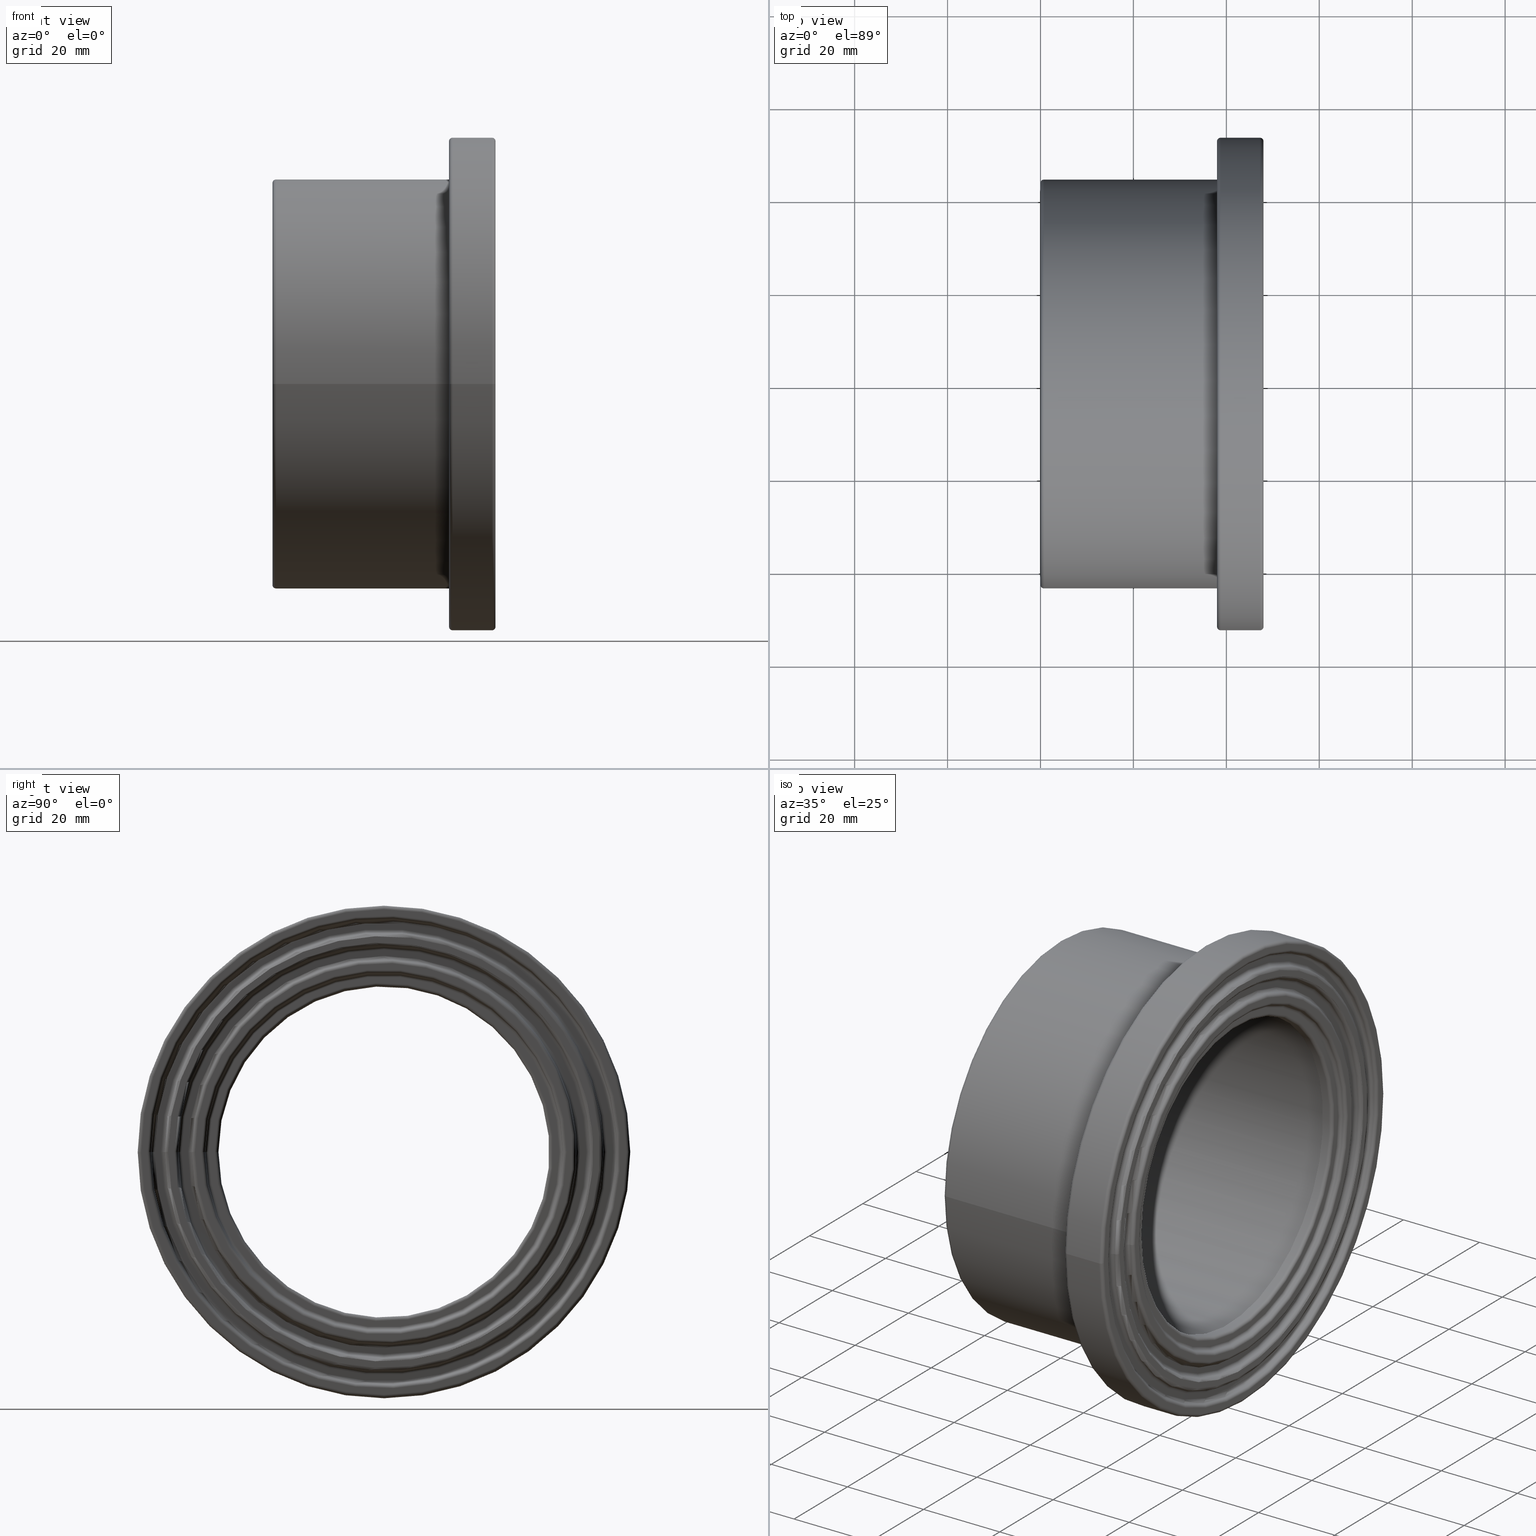
[diagram: canonical four-view strip — front | top / right | iso, engineering-drawing reading convention]
A machine part, canonical four-view strip (front | top / right | iso — engineering-drawing reading convention). The complete STEP part file that produces these views, byte-faithful:
ISO-10303-21;
HEADER;
/* Generated by software containing ST-Developer
 * from STEP Tools, Inc. (www.steptools.com) 
 */

FILE_DESCRIPTION(
/* description */ ('PLASSON FLANGE(FLAT GASKET)C 75'),
/* implementation_level */ '2;1');

FILE_NAME(
/* name */ 
'C:\\Dropbox\\KIMPROJECTS-Inventor\\99-16-3568-Processing\\PVC Catalog
 2017\\055200\\055200075.ipt.stp',
/* time_stamp */ '2017-12-07T16:05:05+02:00',
/* author */ ('KIM'),
/* organization */ (''),
/* preprocessor_version */ 'ST-DEVELOPER v15.6',
/* originating_system */ 'Autodesk Inventor 2015',
/* authorisation */ '');

FILE_SCHEMA (('AUTOMOTIVE_DESIGN { 1 0 10303 214 3 1 1 }'));
ENDSEC;

DATA;
#10=MECHANICAL_DESIGN_GEOMETRIC_PRESENTATION_REPRESENTATION('',(#13),#583);
#11=SHAPE_REPRESENTATION_RELATIONSHIP('SRR','None',#592,#12);
#12=ADVANCED_BREP_SHAPE_REPRESENTATION($,(#14),#582);
#13=STYLED_ITEM('',(#601),#14);
#14=MANIFOLD_SOLID_BREP('Solid1',#323);
#15=CYLINDRICAL_SURFACE('',#330,35.625);
#16=CYLINDRICAL_SURFACE('',#358,37.5);
#17=CYLINDRICAL_SURFACE('',#371,53.);
#18=CYLINDRICAL_SURFACE('',#379,44.);
#19=PLANE('',#328);
#20=PLANE('',#336);
#21=PLANE('',#341);
#22=PLANE('',#345);
#23=PLANE('',#351);
#24=PLANE('',#356);
#25=PLANE('',#364);
#26=PLANE('',#375);
#27=PLANE('',#380);
#28=FACE_BOUND('',#85,.T.);
#29=FACE_BOUND('',#87,.T.);
#30=FACE_BOUND('',#89,.T.);
#31=FACE_BOUND('',#91,.T.);
#32=FACE_BOUND('',#93,.T.);
#33=FACE_BOUND('',#95,.T.);
#34=FACE_BOUND('',#97,.T.);
#35=FACE_BOUND('',#99,.T.);
#36=FACE_BOUND('',#101,.T.);
#37=FACE_BOUND('',#103,.T.);
#38=FACE_BOUND('',#105,.T.);
#39=FACE_BOUND('',#107,.T.);
#40=FACE_BOUND('',#109,.T.);
#41=FACE_BOUND('',#111,.T.);
#42=FACE_BOUND('',#113,.T.);
#43=FACE_BOUND('',#115,.T.);
#44=FACE_BOUND('',#117,.T.);
#45=FACE_BOUND('',#119,.T.);
#46=FACE_BOUND('',#121,.T.);
#47=FACE_BOUND('',#123,.T.);
#48=FACE_BOUND('',#125,.T.);
#49=FACE_BOUND('',#127,.T.);
#50=FACE_BOUND('',#129,.T.);
#51=FACE_BOUND('',#131,.T.);
#52=FACE_BOUND('',#133,.T.);
#53=FACE_BOUND('',#135,.T.);
#54=FACE_BOUND('',#137,.T.);
#55=FACE_BOUND('',#139,.T.);
#56=FACE_OUTER_BOUND('',#84,.T.);
#57=FACE_OUTER_BOUND('',#86,.T.);
#58=FACE_OUTER_BOUND('',#88,.T.);
#59=FACE_OUTER_BOUND('',#90,.T.);
#60=FACE_OUTER_BOUND('',#92,.T.);
#61=FACE_OUTER_BOUND('',#94,.T.);
#62=FACE_OUTER_BOUND('',#96,.T.);
#63=FACE_OUTER_BOUND('',#98,.T.);
#64=FACE_OUTER_BOUND('',#100,.T.);
#65=FACE_OUTER_BOUND('',#102,.T.);
#66=FACE_OUTER_BOUND('',#104,.T.);
#67=FACE_OUTER_BOUND('',#106,.T.);
#68=FACE_OUTER_BOUND('',#108,.T.);
#69=FACE_OUTER_BOUND('',#110,.T.);
#70=FACE_OUTER_BOUND('',#112,.T.);
#71=FACE_OUTER_BOUND('',#114,.T.);
#72=FACE_OUTER_BOUND('',#116,.T.);
#73=FACE_OUTER_BOUND('',#118,.T.);
#74=FACE_OUTER_BOUND('',#120,.T.);
#75=FACE_OUTER_BOUND('',#122,.T.);
#76=FACE_OUTER_BOUND('',#124,.T.);
#77=FACE_OUTER_BOUND('',#126,.T.);
#78=FACE_OUTER_BOUND('',#128,.T.);
#79=FACE_OUTER_BOUND('',#130,.T.);
#80=FACE_OUTER_BOUND('',#132,.T.);
#81=FACE_OUTER_BOUND('',#134,.T.);
#82=FACE_OUTER_BOUND('',#136,.T.);
#83=FACE_OUTER_BOUND('',#138,.T.);
#84=EDGE_LOOP('',(#224));
#85=EDGE_LOOP('',(#225));
#86=EDGE_LOOP('',(#226));
#87=EDGE_LOOP('',(#227));
#88=EDGE_LOOP('',(#228));
#89=EDGE_LOOP('',(#229));
#90=EDGE_LOOP('',(#230));
#91=EDGE_LOOP('',(#231));
#92=EDGE_LOOP('',(#232));
#93=EDGE_LOOP('',(#233));
#94=EDGE_LOOP('',(#234));
#95=EDGE_LOOP('',(#235));
#96=EDGE_LOOP('',(#236));
#97=EDGE_LOOP('',(#237));
#98=EDGE_LOOP('',(#238));
#99=EDGE_LOOP('',(#239));
#100=EDGE_LOOP('',(#240));
#101=EDGE_LOOP('',(#241));
#102=EDGE_LOOP('',(#242));
#103=EDGE_LOOP('',(#243));
#104=EDGE_LOOP('',(#244));
#105=EDGE_LOOP('',(#245));
#106=EDGE_LOOP('',(#246));
#107=EDGE_LOOP('',(#247));
#108=EDGE_LOOP('',(#248));
#109=EDGE_LOOP('',(#249));
#110=EDGE_LOOP('',(#250));
#111=EDGE_LOOP('',(#251));
#112=EDGE_LOOP('',(#252));
#113=EDGE_LOOP('',(#253));
#114=EDGE_LOOP('',(#254));
#115=EDGE_LOOP('',(#255));
#116=EDGE_LOOP('',(#256));
#117=EDGE_LOOP('',(#257));
#118=EDGE_LOOP('',(#258));
#119=EDGE_LOOP('',(#259));
#120=EDGE_LOOP('',(#260));
#121=EDGE_LOOP('',(#261));
#122=EDGE_LOOP('',(#262));
#123=EDGE_LOOP('',(#263));
#124=EDGE_LOOP('',(#264));
#125=EDGE_LOOP('',(#265));
#126=EDGE_LOOP('',(#266));
#127=EDGE_LOOP('',(#267));
#128=EDGE_LOOP('',(#268));
#129=EDGE_LOOP('',(#269));
#130=EDGE_LOOP('',(#270));
#131=EDGE_LOOP('',(#271));
#132=EDGE_LOOP('',(#272));
#133=EDGE_LOOP('',(#273));
#134=EDGE_LOOP('',(#274));
#135=EDGE_LOOP('',(#275));
#136=EDGE_LOOP('',(#276));
#137=EDGE_LOOP('',(#277));
#138=EDGE_LOOP('',(#278));
#139=EDGE_LOOP('',(#279));
#140=CIRCLE('',#326,35.625);
#141=CIRCLE('',#327,36.375);
#142=CIRCLE('',#329,37.7708333333333);
#143=CIRCLE('',#331,35.625);
#144=CIRCLE('',#333,38.5208333333333);
#145=CIRCLE('',#335,39.2708333333333);
#146=CIRCLE('',#337,40.6666666666667);
#147=CIRCLE('',#339,50.1041666666667);
#148=CIRCLE('',#340,50.8541666666667);
#149=CIRCLE('',#342,52.25);
#150=CIRCLE('',#344,49.3541666666667);
#151=CIRCLE('',#346,47.9583333333333);
#152=CIRCLE('',#348,47.2083333333333);
#153=CIRCLE('',#350,46.4583333333333);
#154=CIRCLE('',#352,45.0625);
#155=CIRCLE('',#354,38.25);
#156=CIRCLE('',#355,37.5);
#157=CIRCLE('',#357,43.25);
#158=CIRCLE('',#359,37.5);
#159=CIRCLE('',#361,41.4166666666667);
#160=CIRCLE('',#363,42.1666666666667);
#161=CIRCLE('',#365,43.5625);
#162=CIRCLE('',#367,44.3125);
#163=CIRCLE('',#370,53.);
#164=CIRCLE('',#372,53.);
#165=CIRCLE('',#374,52.25);
#166=CIRCLE('',#376,44.);
#167=CIRCLE('',#378,44.);
#168=VERTEX_POINT('',#497);
#169=VERTEX_POINT('',#499);
#170=VERTEX_POINT('',#502);
#171=VERTEX_POINT('',#505);
#172=VERTEX_POINT('',#508);
#173=VERTEX_POINT('',#511);
#174=VERTEX_POINT('',#514);
#175=VERTEX_POINT('',#517);
#176=VERTEX_POINT('',#519);
#177=VERTEX_POINT('',#522);
#178=VERTEX_POINT('',#525);
#179=VERTEX_POINT('',#528);
#180=VERTEX_POINT('',#531);
#181=VERTEX_POINT('',#534);
#182=VERTEX_POINT('',#537);
#183=VERTEX_POINT('',#540);
#184=VERTEX_POINT('',#542);
#185=VERTEX_POINT('',#545);
#186=VERTEX_POINT('',#548);
#187=VERTEX_POINT('',#551);
#188=VERTEX_POINT('',#554);
#189=VERTEX_POINT('',#557);
#190=VERTEX_POINT('',#560);
#191=VERTEX_POINT('',#564);
#192=VERTEX_POINT('',#567);
#193=VERTEX_POINT('',#570);
#194=VERTEX_POINT('',#573);
#195=VERTEX_POINT('',#576);
#196=EDGE_CURVE('',#168,#168,#140,.T.);
#197=EDGE_CURVE('',#169,#169,#141,.T.);
#198=EDGE_CURVE('',#170,#170,#142,.T.);
#199=EDGE_CURVE('',#171,#171,#143,.T.);
#200=EDGE_CURVE('',#172,#172,#144,.T.);
#201=EDGE_CURVE('',#173,#173,#145,.T.);
#202=EDGE_CURVE('',#174,#174,#146,.T.);
#203=EDGE_CURVE('',#175,#175,#147,.T.);
#204=EDGE_CURVE('',#176,#176,#148,.T.);
#205=EDGE_CURVE('',#177,#177,#149,.T.);
#206=EDGE_CURVE('',#178,#178,#150,.T.);
#207=EDGE_CURVE('',#179,#179,#151,.T.);
#208=EDGE_CURVE('',#180,#180,#152,.T.);
#209=EDGE_CURVE('',#181,#181,#153,.T.);
#210=EDGE_CURVE('',#182,#182,#154,.T.);
#211=EDGE_CURVE('',#183,#183,#155,.T.);
#212=EDGE_CURVE('',#184,#184,#156,.T.);
#213=EDGE_CURVE('',#185,#185,#157,.T.);
#214=EDGE_CURVE('',#186,#186,#158,.T.);
#215=EDGE_CURVE('',#187,#187,#159,.T.);
#216=EDGE_CURVE('',#188,#188,#160,.T.);
#217=EDGE_CURVE('',#189,#189,#161,.T.);
#218=EDGE_CURVE('',#190,#190,#162,.T.);
#219=EDGE_CURVE('',#191,#191,#163,.T.);
#220=EDGE_CURVE('',#192,#192,#164,.T.);
#221=EDGE_CURVE('',#193,#193,#165,.T.);
#222=EDGE_CURVE('',#194,#194,#166,.T.);
#223=EDGE_CURVE('',#195,#195,#167,.T.);
#224=ORIENTED_EDGE('',*,*,#196,.T.);
#225=ORIENTED_EDGE('',*,*,#197,.T.);
#226=ORIENTED_EDGE('',*,*,#198,.F.);
#227=ORIENTED_EDGE('',*,*,#197,.F.);
#228=ORIENTED_EDGE('',*,*,#199,.T.);
#229=ORIENTED_EDGE('',*,*,#196,.F.);
#230=ORIENTED_EDGE('',*,*,#198,.T.);
#231=ORIENTED_EDGE('',*,*,#200,.F.);
#232=ORIENTED_EDGE('',*,*,#200,.T.);
#233=ORIENTED_EDGE('',*,*,#201,.T.);
#234=ORIENTED_EDGE('',*,*,#202,.F.);
#235=ORIENTED_EDGE('',*,*,#201,.F.);
#236=ORIENTED_EDGE('',*,*,#203,.F.);
#237=ORIENTED_EDGE('',*,*,#204,.T.);
#238=ORIENTED_EDGE('',*,*,#205,.F.);
#239=ORIENTED_EDGE('',*,*,#204,.F.);
#240=ORIENTED_EDGE('',*,*,#206,.T.);
#241=ORIENTED_EDGE('',*,*,#203,.T.);
#242=ORIENTED_EDGE('',*,*,#206,.F.);
#243=ORIENTED_EDGE('',*,*,#207,.F.);
#244=ORIENTED_EDGE('',*,*,#208,.F.);
#245=ORIENTED_EDGE('',*,*,#207,.T.);
#246=ORIENTED_EDGE('',*,*,#209,.T.);
#247=ORIENTED_EDGE('',*,*,#208,.T.);
#248=ORIENTED_EDGE('',*,*,#209,.F.);
#249=ORIENTED_EDGE('',*,*,#210,.F.);
#250=ORIENTED_EDGE('',*,*,#211,.T.);
#251=ORIENTED_EDGE('',*,*,#212,.T.);
#252=ORIENTED_EDGE('',*,*,#213,.F.);
#253=ORIENTED_EDGE('',*,*,#211,.F.);
#254=ORIENTED_EDGE('',*,*,#214,.F.);
#255=ORIENTED_EDGE('',*,*,#212,.F.);
#256=ORIENTED_EDGE('',*,*,#202,.T.);
#257=ORIENTED_EDGE('',*,*,#215,.F.);
#258=ORIENTED_EDGE('',*,*,#215,.T.);
#259=ORIENTED_EDGE('',*,*,#216,.T.);
#260=ORIENTED_EDGE('',*,*,#217,.F.);
#261=ORIENTED_EDGE('',*,*,#216,.F.);
#262=ORIENTED_EDGE('',*,*,#217,.T.);
#263=ORIENTED_EDGE('',*,*,#218,.F.);
#264=ORIENTED_EDGE('',*,*,#218,.T.);
#265=ORIENTED_EDGE('',*,*,#210,.T.);
#266=ORIENTED_EDGE('',*,*,#205,.T.);
#267=ORIENTED_EDGE('',*,*,#219,.T.);
#268=ORIENTED_EDGE('',*,*,#220,.F.);
#269=ORIENTED_EDGE('',*,*,#219,.F.);
#270=ORIENTED_EDGE('',*,*,#220,.T.);
#271=ORIENTED_EDGE('',*,*,#221,.T.);
#272=ORIENTED_EDGE('',*,*,#221,.F.);
#273=ORIENTED_EDGE('',*,*,#222,.F.);
#274=ORIENTED_EDGE('',*,*,#223,.T.);
#275=ORIENTED_EDGE('',*,*,#213,.T.);
#276=ORIENTED_EDGE('',*,*,#222,.T.);
#277=ORIENTED_EDGE('',*,*,#223,.F.);
#278=ORIENTED_EDGE('',*,*,#214,.T.);
#279=ORIENTED_EDGE('',*,*,#199,.F.);
#280=TOROIDAL_SURFACE('',#325,36.375,0.75);
#281=TOROIDAL_SURFACE('',#332,37.7708333333333,0.75);
#282=TOROIDAL_SURFACE('',#334,39.2708333333333,0.75);
#283=TOROIDAL_SURFACE('',#338,50.8541666666667,0.75);
#284=TOROIDAL_SURFACE('',#343,49.3541666666667,0.75);
#285=TOROIDAL_SURFACE('',#347,47.9583333333333,0.75);
#286=TOROIDAL_SURFACE('',#349,46.4583333333333,0.75);
#287=TOROIDAL_SURFACE('',#353,38.25,0.75);
#288=TOROIDAL_SURFACE('',#360,40.6666666666667,0.75);
#289=TOROIDAL_SURFACE('',#362,42.1666666666667,0.75);
#290=TOROIDAL_SURFACE('',#366,43.5625,0.75);
#291=TOROIDAL_SURFACE('',#368,45.0625,0.75);
#292=TOROIDAL_SURFACE('',#369,52.25,0.75);
#293=TOROIDAL_SURFACE('',#373,52.25,0.75);
#294=TOROIDAL_SURFACE('',#377,43.25,0.75);
#295=ADVANCED_FACE('',(#56,#28),#280,.T.);
#296=ADVANCED_FACE('',(#57,#29),#19,.T.);
#297=ADVANCED_FACE('',(#58,#30),#15,.F.);
#298=ADVANCED_FACE('',(#59,#31),#281,.F.);
#299=ADVANCED_FACE('',(#60,#32),#282,.T.);
#300=ADVANCED_FACE('',(#61,#33),#20,.T.);
#301=ADVANCED_FACE('',(#62,#34),#283,.T.);
#302=ADVANCED_FACE('',(#63,#35),#21,.T.);
#303=ADVANCED_FACE('',(#64,#36),#284,.F.);
#304=ADVANCED_FACE('',(#65,#37),#22,.T.);
#305=ADVANCED_FACE('',(#66,#38),#285,.F.);
#306=ADVANCED_FACE('',(#67,#39),#286,.T.);
#307=ADVANCED_FACE('',(#68,#40),#23,.T.);
#308=ADVANCED_FACE('',(#69,#41),#287,.T.);
#309=ADVANCED_FACE('',(#70,#42),#24,.T.);
#310=ADVANCED_FACE('',(#71,#43),#16,.F.);
#311=ADVANCED_FACE('',(#72,#44),#288,.T.);
#312=ADVANCED_FACE('',(#73,#45),#289,.F.);
#313=ADVANCED_FACE('',(#74,#46),#25,.T.);
#314=ADVANCED_FACE('',(#75,#47),#290,.F.);
#315=ADVANCED_FACE('',(#76,#48),#291,.T.);
#316=ADVANCED_FACE('',(#77,#49),#292,.T.);
#317=ADVANCED_FACE('',(#78,#50),#17,.T.);
#318=ADVANCED_FACE('',(#79,#51),#293,.T.);
#319=ADVANCED_FACE('',(#80,#52),#26,.T.);
#320=ADVANCED_FACE('',(#81,#53),#294,.T.);
#321=ADVANCED_FACE('',(#82,#54),#18,.T.);
#322=ADVANCED_FACE('',(#83,#55),#27,.T.);
#323=CLOSED_SHELL('',(#295,#296,#297,#298,#299,#300,#301,#302,#303,#304,
#305,#306,#307,#308,#309,#310,#311,#312,#313,#314,#315,#316,#317,#318,#319,
#320,#321,#322));
#324=AXIS2_PLACEMENT_3D('placement',#495,#381,#382);
#325=AXIS2_PLACEMENT_3D('',#496,#383,#384);
#326=AXIS2_PLACEMENT_3D('',#498,#385,#386);
#327=AXIS2_PLACEMENT_3D('',#500,#387,#388);
#328=AXIS2_PLACEMENT_3D('',#501,#389,#390);
#329=AXIS2_PLACEMENT_3D('',#503,#391,#392);
#330=AXIS2_PLACEMENT_3D('',#504,#393,#394);
#331=AXIS2_PLACEMENT_3D('',#506,#395,#396);
#332=AXIS2_PLACEMENT_3D('',#507,#397,#398);
#333=AXIS2_PLACEMENT_3D('',#509,#399,#400);
#334=AXIS2_PLACEMENT_3D('',#510,#401,#402);
#335=AXIS2_PLACEMENT_3D('',#512,#403,#404);
#336=AXIS2_PLACEMENT_3D('',#513,#405,#406);
#337=AXIS2_PLACEMENT_3D('',#515,#407,#408);
#338=AXIS2_PLACEMENT_3D('',#516,#409,#410);
#339=AXIS2_PLACEMENT_3D('',#518,#411,#412);
#340=AXIS2_PLACEMENT_3D('',#520,#413,#414);
#341=AXIS2_PLACEMENT_3D('',#521,#415,#416);
#342=AXIS2_PLACEMENT_3D('',#523,#417,#418);
#343=AXIS2_PLACEMENT_3D('',#524,#419,#420);
#344=AXIS2_PLACEMENT_3D('',#526,#421,#422);
#345=AXIS2_PLACEMENT_3D('',#527,#423,#424);
#346=AXIS2_PLACEMENT_3D('',#529,#425,#426);
#347=AXIS2_PLACEMENT_3D('',#530,#427,#428);
#348=AXIS2_PLACEMENT_3D('',#532,#429,#430);
#349=AXIS2_PLACEMENT_3D('',#533,#431,#432);
#350=AXIS2_PLACEMENT_3D('',#535,#433,#434);
#351=AXIS2_PLACEMENT_3D('',#536,#435,#436);
#352=AXIS2_PLACEMENT_3D('',#538,#437,#438);
#353=AXIS2_PLACEMENT_3D('',#539,#439,#440);
#354=AXIS2_PLACEMENT_3D('',#541,#441,#442);
#355=AXIS2_PLACEMENT_3D('',#543,#443,#444);
#356=AXIS2_PLACEMENT_3D('',#544,#445,#446);
#357=AXIS2_PLACEMENT_3D('',#546,#447,#448);
#358=AXIS2_PLACEMENT_3D('',#547,#449,#450);
#359=AXIS2_PLACEMENT_3D('',#549,#451,#452);
#360=AXIS2_PLACEMENT_3D('',#550,#453,#454);
#361=AXIS2_PLACEMENT_3D('',#552,#455,#456);
#362=AXIS2_PLACEMENT_3D('',#553,#457,#458);
#363=AXIS2_PLACEMENT_3D('',#555,#459,#460);
#364=AXIS2_PLACEMENT_3D('',#556,#461,#462);
#365=AXIS2_PLACEMENT_3D('',#558,#463,#464);
#366=AXIS2_PLACEMENT_3D('',#559,#465,#466);
#367=AXIS2_PLACEMENT_3D('',#561,#467,#468);
#368=AXIS2_PLACEMENT_3D('',#562,#469,#470);
#369=AXIS2_PLACEMENT_3D('',#563,#471,#472);
#370=AXIS2_PLACEMENT_3D('',#565,#473,#474);
#371=AXIS2_PLACEMENT_3D('',#566,#475,#476);
#372=AXIS2_PLACEMENT_3D('',#568,#477,#478);
#373=AXIS2_PLACEMENT_3D('',#569,#479,#480);
#374=AXIS2_PLACEMENT_3D('',#571,#481,#482);
#375=AXIS2_PLACEMENT_3D('',#572,#483,#484);
#376=AXIS2_PLACEMENT_3D('',#574,#485,#486);
#377=AXIS2_PLACEMENT_3D('',#575,#487,#488);
#378=AXIS2_PLACEMENT_3D('',#577,#489,#490);
#379=AXIS2_PLACEMENT_3D('',#578,#491,#492);
#380=AXIS2_PLACEMENT_3D('',#579,#493,#494);
#381=DIRECTION('axis',(0.,0.,1.));
#382=DIRECTION('refdir',(1.,0.,0.));
#383=DIRECTION('center_axis',(-1.,0.,0.));
#384=DIRECTION('ref_axis',(0.,0.,1.));
#385=DIRECTION('center_axis',(-1.,0.,0.));
#386=DIRECTION('ref_axis',(0.,1.,6.12323399573677E-17));
#387=DIRECTION('center_axis',(1.,0.,0.));
#388=DIRECTION('ref_axis',(0.,1.,6.12323399573676E-17));
#389=DIRECTION('center_axis',(1.,0.,0.));
#390=DIRECTION('ref_axis',(0.,0.,-1.));
#391=DIRECTION('center_axis',(-1.,0.,0.));
#392=DIRECTION('ref_axis',(0.,1.,6.12323399573677E-17));
#393=DIRECTION('center_axis',(-1.,0.,0.));
#394=DIRECTION('ref_axis',(0.,-1.,0.));
#395=DIRECTION('center_axis',(-1.,0.,0.));
#396=DIRECTION('ref_axis',(0.,0.,1.));
#397=DIRECTION('center_axis',(-1.,0.,0.));
#398=DIRECTION('ref_axis',(0.,0.,1.));
#399=DIRECTION('center_axis',(-1.,0.,0.));
#400=DIRECTION('ref_axis',(0.,1.,6.12323399573677E-17));
#401=DIRECTION('center_axis',(-1.,0.,0.));
#402=DIRECTION('ref_axis',(0.,0.,1.));
#403=DIRECTION('center_axis',(1.,0.,0.));
#404=DIRECTION('ref_axis',(0.,1.,6.12323399573677E-17));
#405=DIRECTION('center_axis',(1.,0.,0.));
#406=DIRECTION('ref_axis',(0.,0.,-1.));
#407=DIRECTION('center_axis',(-1.,0.,0.));
#408=DIRECTION('ref_axis',(0.,1.,6.12323399573677E-17));
#409=DIRECTION('center_axis',(-1.,0.,0.));
#410=DIRECTION('ref_axis',(0.,0.,1.));
#411=DIRECTION('center_axis',(1.,0.,0.));
#412=DIRECTION('ref_axis',(0.,1.,6.12323399573677E-17));
#413=DIRECTION('center_axis',(1.,0.,0.));
#414=DIRECTION('ref_axis',(0.,1.,6.12323399573677E-17));
#415=DIRECTION('center_axis',(1.,0.,0.));
#416=DIRECTION('ref_axis',(0.,0.,-1.));
#417=DIRECTION('center_axis',(-1.,0.,0.));
#418=DIRECTION('ref_axis',(0.,1.,6.12323399573677E-17));
#419=DIRECTION('center_axis',(-1.,0.,0.));
#420=DIRECTION('ref_axis',(0.,0.,1.));
#421=DIRECTION('center_axis',(-1.,0.,0.));
#422=DIRECTION('ref_axis',(0.,1.,6.12323399573677E-17));
#423=DIRECTION('center_axis',(1.,0.,0.));
#424=DIRECTION('ref_axis',(0.,0.,-1.));
#425=DIRECTION('center_axis',(1.,0.,0.));
#426=DIRECTION('ref_axis',(0.,1.,6.12323399573677E-17));
#427=DIRECTION('center_axis',(-1.,0.,0.));
#428=DIRECTION('ref_axis',(0.,0.,1.));
#429=DIRECTION('center_axis',(1.,0.,0.));
#430=DIRECTION('ref_axis',(0.,1.,6.12323399573677E-17));
#431=DIRECTION('center_axis',(-1.,0.,0.));
#432=DIRECTION('ref_axis',(0.,0.,1.));
#433=DIRECTION('center_axis',(-1.,0.,0.));
#434=DIRECTION('ref_axis',(0.,1.,6.12323399573677E-17));
#435=DIRECTION('center_axis',(1.,0.,0.));
#436=DIRECTION('ref_axis',(0.,0.,-1.));
#437=DIRECTION('center_axis',(1.,0.,0.));
#438=DIRECTION('ref_axis',(0.,1.,6.12323399573676E-17));
#439=DIRECTION('center_axis',(-1.,0.,0.));
#440=DIRECTION('ref_axis',(0.,0.,1.));
#441=DIRECTION('center_axis',(-1.,0.,0.));
#442=DIRECTION('ref_axis',(0.,1.,6.12323399573677E-17));
#443=DIRECTION('center_axis',(1.,0.,0.));
#444=DIRECTION('ref_axis',(0.,1.,6.12323399573677E-17));
#445=DIRECTION('center_axis',(-1.,0.,0.));
#446=DIRECTION('ref_axis',(0.,0.,1.));
#447=DIRECTION('center_axis',(1.,0.,0.));
#448=DIRECTION('ref_axis',(0.,1.,6.12323399573677E-17));
#449=DIRECTION('center_axis',(-1.,0.,0.));
#450=DIRECTION('ref_axis',(0.,-1.,0.));
#451=DIRECTION('center_axis',(-1.,0.,0.));
#452=DIRECTION('ref_axis',(0.,0.,1.));
#453=DIRECTION('center_axis',(-1.,0.,0.));
#454=DIRECTION('ref_axis',(0.,0.,1.));
#455=DIRECTION('center_axis',(-1.,0.,0.));
#456=DIRECTION('ref_axis',(0.,1.,6.12323399573677E-17));
#457=DIRECTION('center_axis',(-1.,0.,0.));
#458=DIRECTION('ref_axis',(0.,0.,1.));
#459=DIRECTION('center_axis',(1.,0.,0.));
#460=DIRECTION('ref_axis',(0.,1.,6.12323399573676E-17));
#461=DIRECTION('center_axis',(1.,0.,0.));
#462=DIRECTION('ref_axis',(0.,0.,-1.));
#463=DIRECTION('center_axis',(-1.,0.,0.));
#464=DIRECTION('ref_axis',(0.,1.,6.12323399573677E-17));
#465=DIRECTION('center_axis',(-1.,0.,0.));
#466=DIRECTION('ref_axis',(0.,0.,1.));
#467=DIRECTION('center_axis',(-1.,0.,0.));
#468=DIRECTION('ref_axis',(0.,1.,6.12323399573677E-17));
#469=DIRECTION('center_axis',(-1.,0.,0.));
#470=DIRECTION('ref_axis',(0.,0.,1.));
#471=DIRECTION('center_axis',(-1.,0.,0.));
#472=DIRECTION('ref_axis',(0.,0.,1.));
#473=DIRECTION('center_axis',(1.,0.,0.));
#474=DIRECTION('ref_axis',(0.,1.,6.12323399573677E-17));
#475=DIRECTION('center_axis',(-1.,0.,0.));
#476=DIRECTION('ref_axis',(0.,-1.,0.));
#477=DIRECTION('center_axis',(-1.,0.,0.));
#478=DIRECTION('ref_axis',(0.,1.,6.12323399573677E-17));
#479=DIRECTION('center_axis',(-1.,0.,0.));
#480=DIRECTION('ref_axis',(0.,0.,1.));
#481=DIRECTION('center_axis',(1.,0.,0.));
#482=DIRECTION('ref_axis',(0.,1.,6.12323399573677E-17));
#483=DIRECTION('center_axis',(-1.,0.,0.));
#484=DIRECTION('ref_axis',(0.,0.,1.));
#485=DIRECTION('center_axis',(-1.,0.,0.));
#486=DIRECTION('ref_axis',(0.,0.,1.));
#487=DIRECTION('center_axis',(-1.,0.,0.));
#488=DIRECTION('ref_axis',(0.,0.,1.));
#489=DIRECTION('center_axis',(-1.,0.,0.));
#490=DIRECTION('ref_axis',(0.,1.,6.12323399573677E-17));
#491=DIRECTION('center_axis',(-1.,0.,0.));
#492=DIRECTION('ref_axis',(0.,-1.,0.));
#493=DIRECTION('center_axis',(-1.,0.,0.));
#494=DIRECTION('ref_axis',(0.,0.,1.));
#495=CARTESIAN_POINT('',(0.,0.,0.));
#496=CARTESIAN_POINT('Origin',(45.75,0.,0.));
#497=CARTESIAN_POINT('',(45.75,-35.625,2.18140211098122E-15));
#498=CARTESIAN_POINT('Origin',(45.75,0.,0.));
#499=CARTESIAN_POINT('',(46.5,-36.375,-6.68197909784775E-15));
#500=CARTESIAN_POINT('Origin',(46.5,0.,0.));
#501=CARTESIAN_POINT('Origin',(46.5,-38.5208333333333,0.));
#502=CARTESIAN_POINT('',(46.5,-37.7708333333333,2.31279650713974E-15));
#503=CARTESIAN_POINT('Origin',(46.5,0.,0.));
#504=CARTESIAN_POINT('Origin',(45.25,0.,0.));
#505=CARTESIAN_POINT('',(44.,-35.625,0.));
#506=CARTESIAN_POINT('Origin',(44.,0.,0.));
#507=CARTESIAN_POINT('Origin',(47.25,0.,0.));
#508=CARTESIAN_POINT('',(47.25,-38.5208333333333,2.35872076210777E-15));
#509=CARTESIAN_POINT('Origin',(47.25,0.,0.));
#510=CARTESIAN_POINT('Origin',(47.25,0.,0.));
#511=CARTESIAN_POINT('',(48.,-39.2708333333333,-7.21393505122738E-15));
#512=CARTESIAN_POINT('Origin',(48.,0.,0.));
#513=CARTESIAN_POINT('Origin',(48.,-41.4166666666667,0.));
#514=CARTESIAN_POINT('',(48.,-40.6666666666667,2.49011515826629E-15));
#515=CARTESIAN_POINT('Origin',(48.,0.,0.));
#516=CARTESIAN_POINT('Origin',(47.25,0.,0.));
#517=CARTESIAN_POINT('',(47.25,-50.1041666666667,-9.20398609984183E-15));
#518=CARTESIAN_POINT('Origin',(47.25,0.,0.));
#519=CARTESIAN_POINT('',(48.,-50.8541666666667,-9.34175886474591E-15));
#520=CARTESIAN_POINT('Origin',(48.,0.,0.));
#521=CARTESIAN_POINT('Origin',(48.,-53.,0.));
#522=CARTESIAN_POINT('',(48.,-52.25,3.19938976277246E-15));
#523=CARTESIAN_POINT('Origin',(48.,0.,0.));
#524=CARTESIAN_POINT('Origin',(47.25,0.,0.));
#525=CARTESIAN_POINT('',(46.5,-49.3541666666667,3.02207111164592E-15));
#526=CARTESIAN_POINT('Origin',(46.5,0.,0.));
#527=CARTESIAN_POINT('Origin',(46.5,-50.1041666666667,0.));
#528=CARTESIAN_POINT('',(46.5,-47.9583333333333,-8.80980291136627E-15));
#529=CARTESIAN_POINT('Origin',(46.5,0.,0.));
#530=CARTESIAN_POINT('Origin',(47.25,0.,0.));
#531=CARTESIAN_POINT('',(47.25,-47.2083333333333,-8.67203014646219E-15));
#532=CARTESIAN_POINT('Origin',(47.25,0.,0.));
#533=CARTESIAN_POINT('Origin',(47.25,0.,0.));
#534=CARTESIAN_POINT('',(48.,-46.4583333333333,2.84475246051937E-15));
#535=CARTESIAN_POINT('Origin',(48.,0.,0.));
#536=CARTESIAN_POINT('Origin',(48.,-47.2083333333333,0.));
#537=CARTESIAN_POINT('',(48.,-45.0625,-8.27784695798664E-15));
#538=CARTESIAN_POINT('Origin',(48.,0.,0.));
#539=CARTESIAN_POINT('Origin',(0.750000000000002,0.,0.));
#540=CARTESIAN_POINT('',(0.,-38.25,2.34213700336931E-15));
#541=CARTESIAN_POINT('Origin',(0.,0.,0.));
#542=CARTESIAN_POINT('',(0.750000000000002,-37.5,-6.88863824520386E-15));
#543=CARTESIAN_POINT('Origin',(0.750000000000002,0.,0.));
#544=CARTESIAN_POINT('Origin',(0.,-37.5,0.));
#545=CARTESIAN_POINT('',(0.,-43.25,-7.94489610946845E-15));
#546=CARTESIAN_POINT('Origin',(0.,0.,0.));
#547=CARTESIAN_POINT('Origin',(22.,0.,0.));
#548=CARTESIAN_POINT('',(44.,-37.5,0.));
#549=CARTESIAN_POINT('Origin',(44.,0.,0.));
#550=CARTESIAN_POINT('Origin',(47.25,0.,0.));
#551=CARTESIAN_POINT('',(47.25,-41.4166666666667,2.53603941323431E-15));
#552=CARTESIAN_POINT('Origin',(47.25,0.,0.));
#553=CARTESIAN_POINT('Origin',(47.25,0.,0.));
#554=CARTESIAN_POINT('',(46.5,-42.1666666666667,-7.74589100460701E-15));
#555=CARTESIAN_POINT('Origin',(46.5,0.,0.));
#556=CARTESIAN_POINT('Origin',(46.5,-44.3125,0.));
#557=CARTESIAN_POINT('',(46.5,-43.5625,2.66743380939283E-15));
#558=CARTESIAN_POINT('Origin',(46.5,0.,0.));
#559=CARTESIAN_POINT('Origin',(47.25,0.,0.));
#560=CARTESIAN_POINT('',(47.25,-44.3125,2.71335806436086E-15));
#561=CARTESIAN_POINT('Origin',(47.25,0.,0.));
#562=CARTESIAN_POINT('Origin',(47.25,0.,0.));
#563=CARTESIAN_POINT('Origin',(47.25,0.,0.));
#564=CARTESIAN_POINT('',(47.25,-53.,-9.73594205322146E-15));
#565=CARTESIAN_POINT('Origin',(47.25,0.,0.));
#566=CARTESIAN_POINT('Origin',(43.,0.,0.));
#567=CARTESIAN_POINT('',(38.75,-53.,3.24531401774049E-15));
#568=CARTESIAN_POINT('Origin',(38.75,0.,0.));
#569=CARTESIAN_POINT('Origin',(38.75,0.,0.));
#570=CARTESIAN_POINT('',(38.,-52.25,-9.59816928831738E-15));
#571=CARTESIAN_POINT('Origin',(38.,0.,0.));
#572=CARTESIAN_POINT('Origin',(38.,-44.,0.));
#573=CARTESIAN_POINT('',(38.,-44.,0.));
#574=CARTESIAN_POINT('Origin',(38.,0.,0.));
#575=CARTESIAN_POINT('Origin',(0.75,0.,0.));
#576=CARTESIAN_POINT('',(0.75,-44.,2.69422295812418E-15));
#577=CARTESIAN_POINT('Origin',(0.75,0.,0.));
#578=CARTESIAN_POINT('Origin',(19.,0.,0.));
#579=CARTESIAN_POINT('Origin',(44.,-35.625,0.));
#580=UNCERTAINTY_MEASURE_WITH_UNIT(LENGTH_MEASURE(0.01),#584,
'DISTANCE_ACCURACY_VALUE',
'Maximum model space distance between geometric entities at asserted c
onnectivities');
#581=UNCERTAINTY_MEASURE_WITH_UNIT(LENGTH_MEASURE(1.E-6),#584,
'DISTANCE_ACCURACY_VALUE',
'Maximum model space distance between geometric entities at asserted c
onnectivities');
#582=(
GEOMETRIC_REPRESENTATION_CONTEXT(3)
GLOBAL_UNCERTAINTY_ASSIGNED_CONTEXT((#580))
GLOBAL_UNIT_ASSIGNED_CONTEXT((#584,#587,#585))
REPRESENTATION_CONTEXT('','3D')
);
#583=(
GEOMETRIC_REPRESENTATION_CONTEXT(3)
GLOBAL_UNCERTAINTY_ASSIGNED_CONTEXT((#581))
GLOBAL_UNIT_ASSIGNED_CONTEXT((#584,#587,#585))
REPRESENTATION_CONTEXT('','3D')
);
#584=(
LENGTH_UNIT()
NAMED_UNIT(*)
SI_UNIT(.MILLI.,.METRE.)
);
#585=(
NAMED_UNIT(*)
SI_UNIT($,.STERADIAN.)
SOLID_ANGLE_UNIT()
);
#586=DIMENSIONAL_EXPONENTS(0.,0.,0.,0.,0.,0.,0.);
#587=(
CONVERSION_BASED_UNIT('degree',#589)
NAMED_UNIT(#586)
PLANE_ANGLE_UNIT()
);
#588=(
NAMED_UNIT(*)
PLANE_ANGLE_UNIT()
SI_UNIT($,.RADIAN.)
);
#589=PLANE_ANGLE_MEASURE_WITH_UNIT(PLANE_ANGLE_MEASURE(0.01745329252),#588);
#590=SHAPE_DEFINITION_REPRESENTATION(#591,#592);
#591=PRODUCT_DEFINITION_SHAPE('',$,#594);
#592=SHAPE_REPRESENTATION('',(#324),#582);
#593=PRODUCT_DEFINITION_CONTEXT('part definition',#598,'design');
#594=PRODUCT_DEFINITION('055200075','055200075',#595,#593);
#595=PRODUCT_DEFINITION_FORMATION('',$,#600);
#596=PRODUCT_RELATED_PRODUCT_CATEGORY('055200075','055200075',(#600));
#597=APPLICATION_PROTOCOL_DEFINITION('international standard',
'automotive_design',2009,#598);
#598=APPLICATION_CONTEXT(
'Core Data for Automotive Mechanical Design Process');
#599=PRODUCT_CONTEXT('part definition',#598,'mechanical');
#600=PRODUCT('055200075','055200075',$,(#599));
#601=PRESENTATION_STYLE_ASSIGNMENT((#602));
#602=SURFACE_STYLE_USAGE(.BOTH.,#603);
#603=SURFACE_SIDE_STYLE($,(#604));
#604=SURFACE_STYLE_FILL_AREA(#605);
#605=FILL_AREA_STYLE($,(#606));
#606=FILL_AREA_STYLE_COLOUR($,#607);
#607=COLOUR_RGB('',0.749019607843137,0.749019607843137,0.749019607843137);
ENDSEC;
END-ISO-10303-21;
